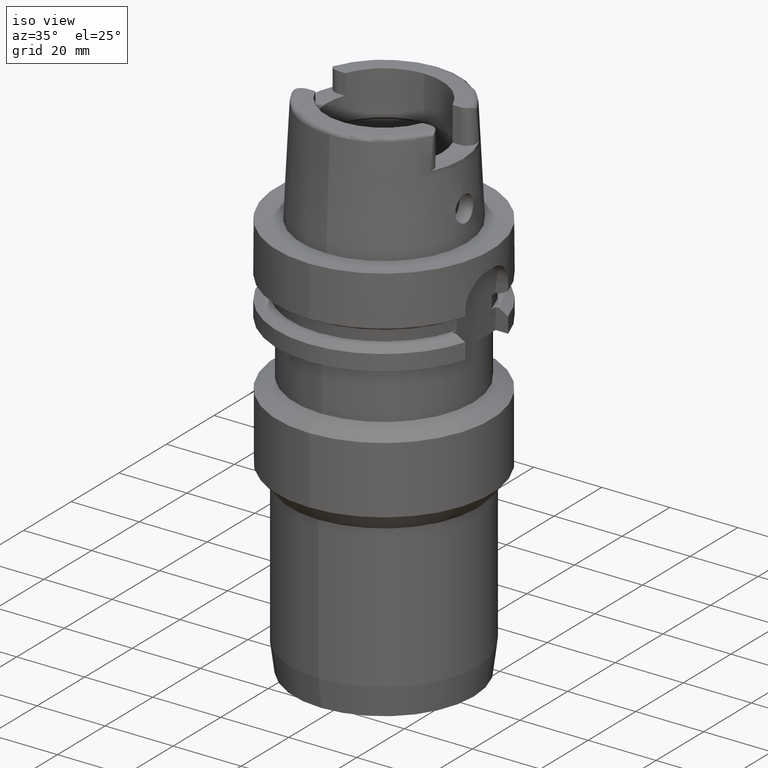
[diagram: clean part render]
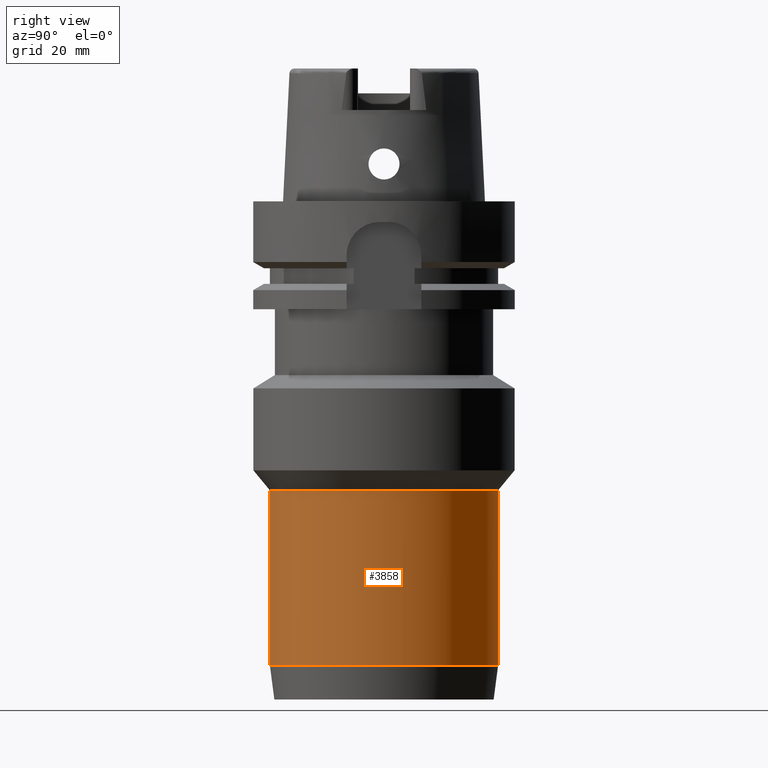
[diagram: tour spotlight — one face highlighted and labeled with its STEP entity id]
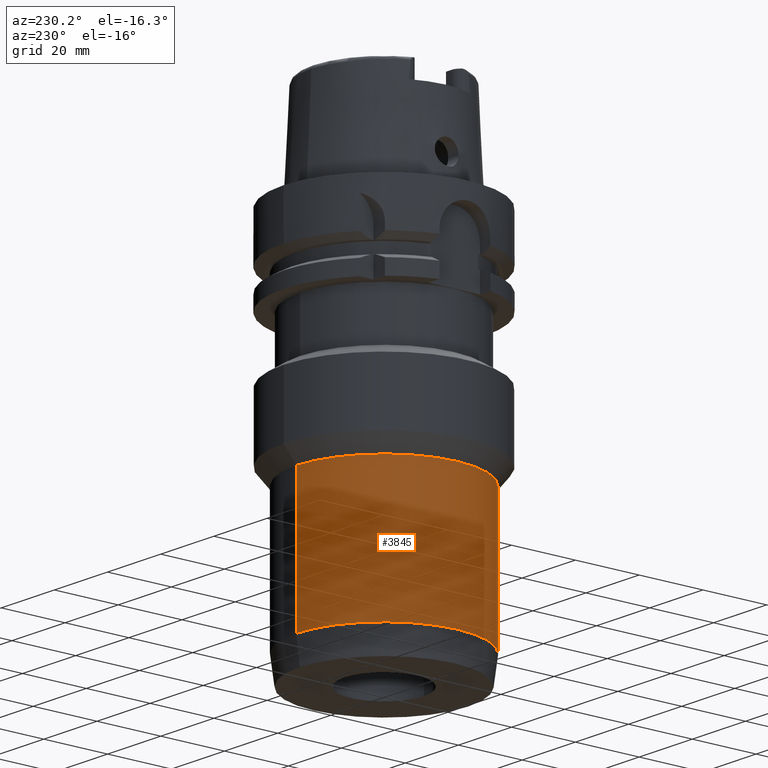
[diagram: tour spotlight — one face highlighted and labeled with its STEP entity id]
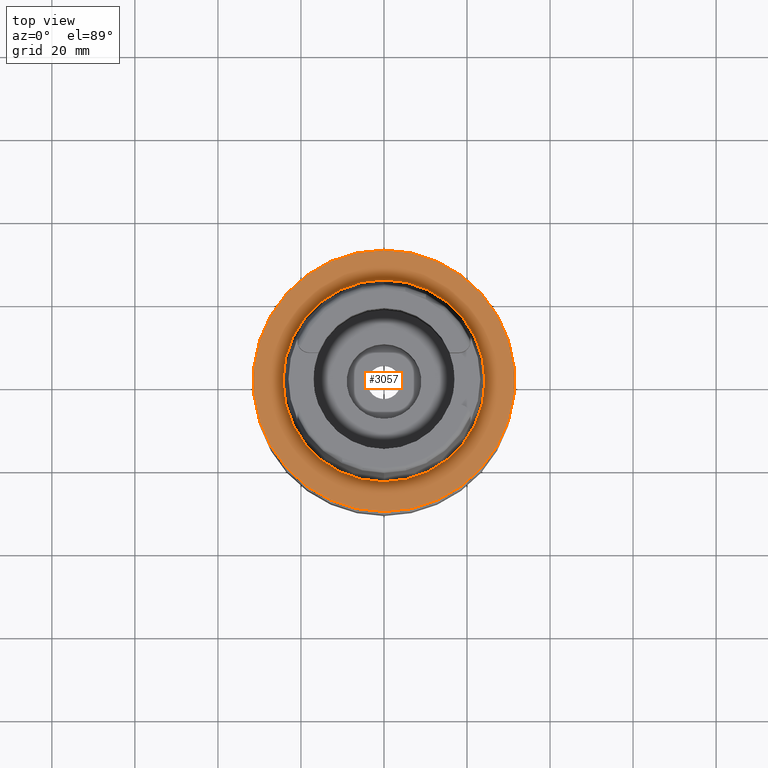
[diagram: tour spotlight — one face highlighted and labeled with its STEP entity id]
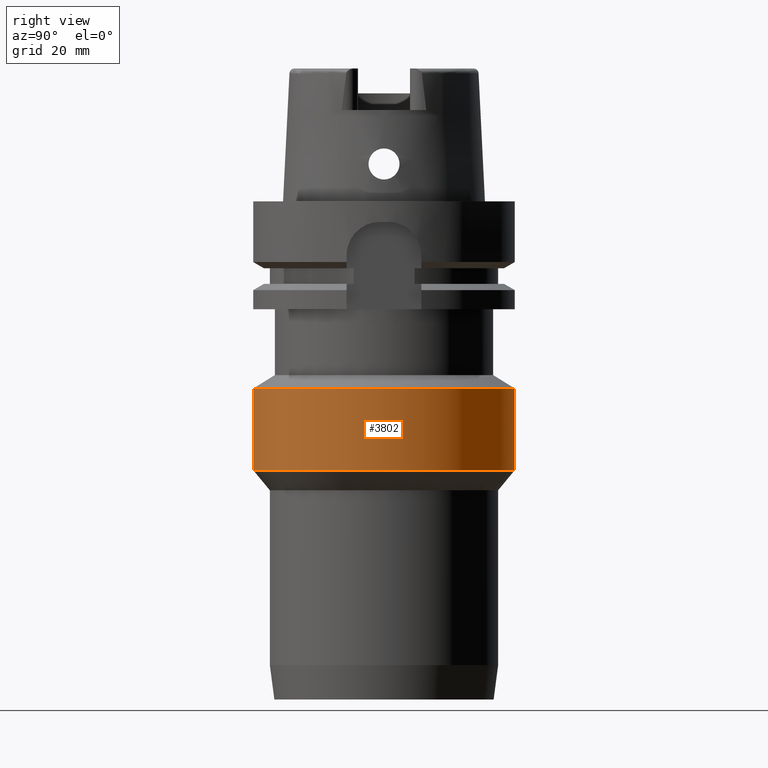
[diagram: tour spotlight — one face highlighted and labeled with its STEP entity id]
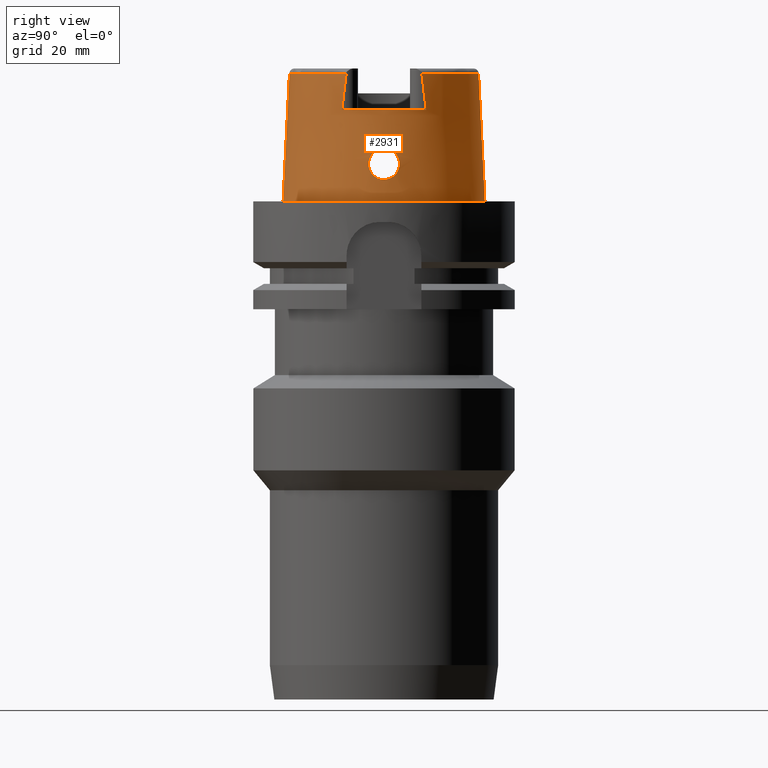
[diagram: tour spotlight — one face highlighted and labeled with its STEP entity id]
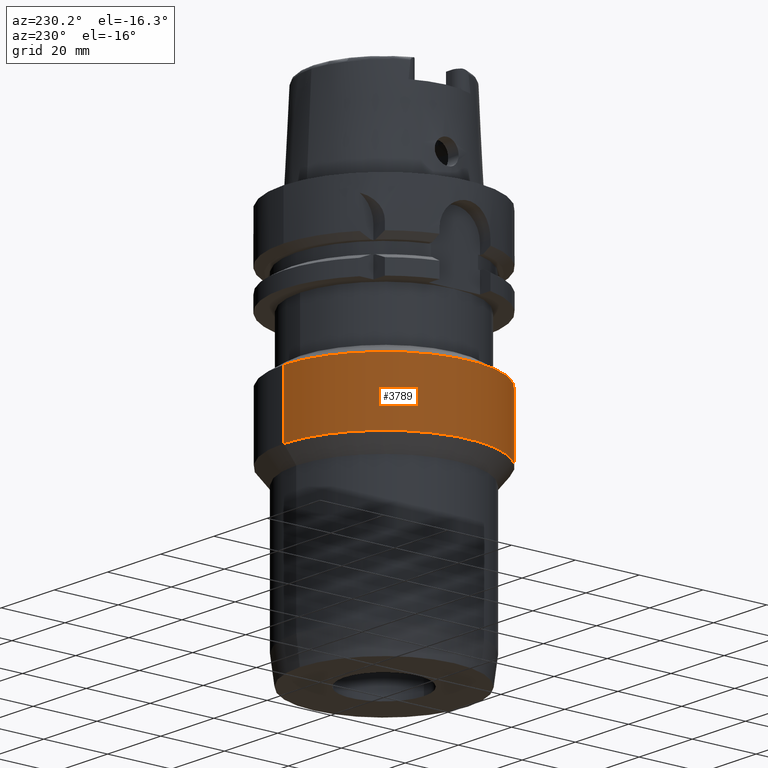
[diagram: tour spotlight — one face highlighted and labeled with its STEP entity id]
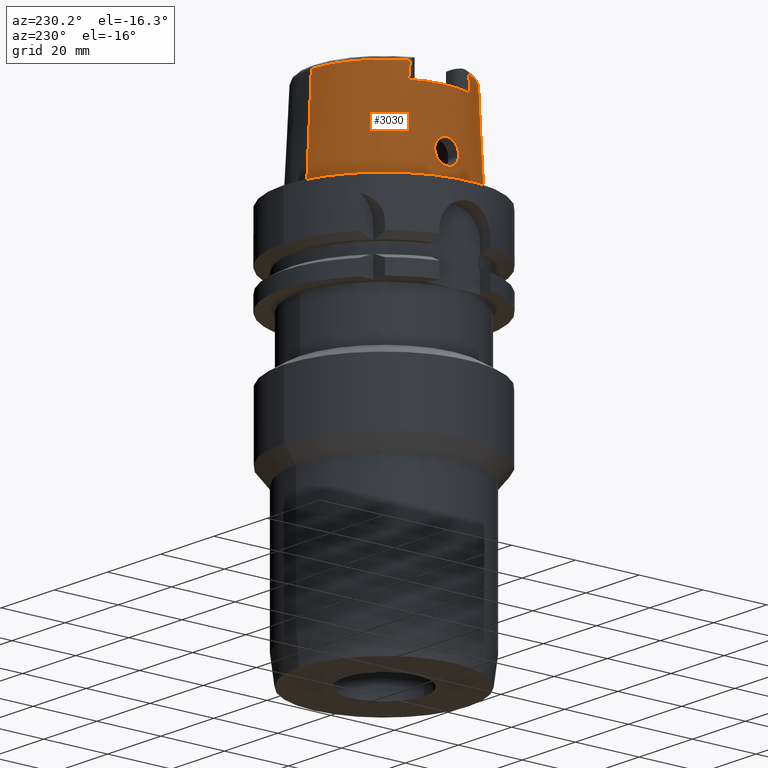
[diagram: tour spotlight — one face highlighted and labeled with its STEP entity id]
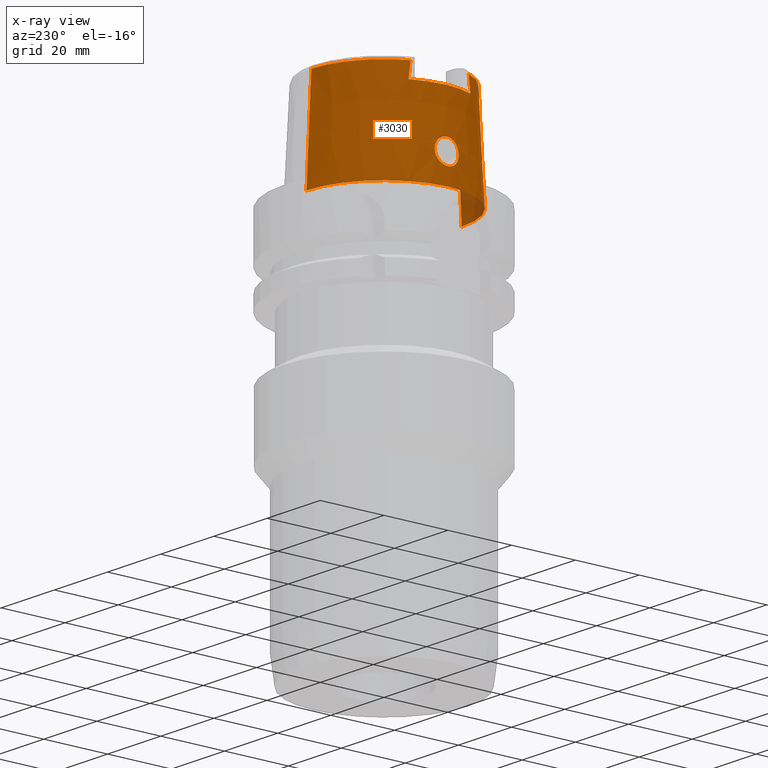
[diagram: x-ray of the same camera — body ghosted, this tour face saturated]
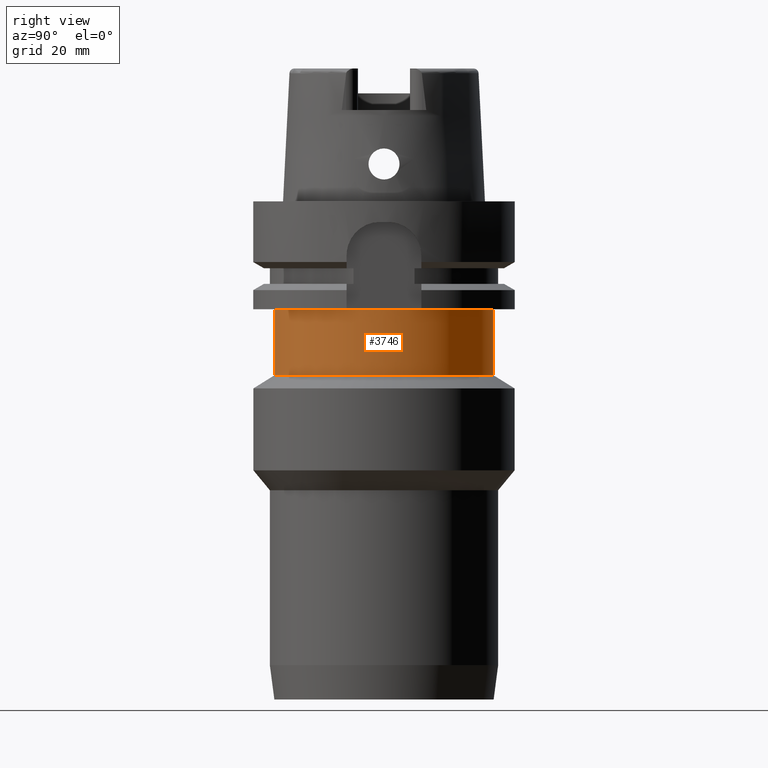
[diagram: tour spotlight — one face highlighted and labeled with its STEP entity id]
A machine part: a face-by-face anatomy tour. The part has 99 B-rep faces; the first image is the clean iso view, then the 8 largest visible faces are spotlighted one at a time (largest first), each with its STEP entity span.

Face 1 — right view, entity #3858. In plain terms, the highlighted cylindrical surface (partial cylindrical patch) has radius 27.5 mm, axis along (0, 0, -1).
Definition (entity closure, byte-faithful):
#1709=CARTESIAN_POINT('',(0.E0,0.E0,-6.958746436593E1));
#1710=DIRECTION('',(0.E0,0.E0,-1.E0));
#1711=DIRECTION('',(0.E0,1.E0,0.E0));
#1712=AXIS2_PLACEMENT_3D('',#1709,#1710,#1711);
#1748=DIRECTION('',(0.E0,7.135492575059E-14,-1.E0));
#1749=VECTOR('',#1748,4.212177002007E1);
#1750=CARTESIAN_POINT('',(0.E0,-2.75E1,-6.958746436593E1));
#1751=LINE('',#1750,#1749);
#1755=DIRECTION('',(0.E0,-7.143926963445E-14,-1.E0));
#1756=VECTOR('',#1755,4.212177002007E1);
#1757=CARTESIAN_POINT('',(0.E0,2.75E1,-6.958746436593E1));
#1758=LINE('',#1757,#1756);
#1769=CARTESIAN_POINT('',(0.E0,0.E0,-1.117092343860E2));
#1770=DIRECTION('',(0.E0,0.E0,1.E0));
#1771=DIRECTION('',(0.E0,-1.E0,0.E0));
#1772=AXIS2_PLACEMENT_3D('',#1769,#1770,#1771);
#2495=CARTESIAN_POINT('',(0.E0,2.75E1,-6.958746436593E1));
#2496=VERTEX_POINT('',#2495);
#2497=CARTESIAN_POINT('',(0.E0,-2.75E1,-6.958746436593E1));
#2498=VERTEX_POINT('',#2497);
#2499=CARTESIAN_POINT('',(0.E0,2.75E1,-1.117092343860E2));
#2500=VERTEX_POINT('',#2499);
#2501=CARTESIAN_POINT('',(0.E0,-2.75E1,-1.117092343860E2));
#2502=VERTEX_POINT('',#2501);
#3846=CARTESIAN_POINT('',(0.E0,1.709606931610E-14,3.96E1));
#3847=DIRECTION('',(0.E0,0.E0,-1.E0));
#3848=DIRECTION('',(0.E0,-1.E0,0.E0));
#3849=AXIS2_PLACEMENT_3D('',#3846,#3847,#3848);
#3850=CYLINDRICAL_SURFACE('',#3849,2.75E1);
#3851=ORIENTED_EDGE('',*,*,#3836,.T.);
#3853=ORIENTED_EDGE('',*,*,#3852,.F.);
#3854=ORIENTED_EDGE('',*,*,#3839,.F.);
#3855=ORIENTED_EDGE('',*,*,#3810,.F.);
#3856=EDGE_LOOP('',(#3851,#3853,#3854,#3855));
#3857=FACE_OUTER_BOUND('',#3856,.F.);
#1713=CIRCLE('',#1712,2.75E1);
#1773=CIRCLE('',#1772,2.75E1);
#3810=EDGE_CURVE('',#2496,#2498,#1713,.T.);
#3836=EDGE_CURVE('',#2496,#2500,#1758,.T.);
#3839=EDGE_CURVE('',#2498,#2502,#1751,.T.);
#3852=EDGE_CURVE('',#2502,#2500,#1773,.T.);
#3858=ADVANCED_FACE('',(#3857),#3850,.T.);

Face 2 — auxiliary view, entity #3845. In plain terms, the highlighted cylindrical surface (partial cylindrical patch) has radius 27.5 mm, axis along (0, 0, -1).
Definition (entity closure, byte-faithful):
#1740=CARTESIAN_POINT('',(0.E0,0.E0,-6.958746436593E1));
#1741=DIRECTION('',(0.E0,0.E0,-1.E0));
#1742=DIRECTION('',(0.E0,-1.E0,0.E0));
#1743=AXIS2_PLACEMENT_3D('',#1740,#1741,#1742);
#1748=DIRECTION('',(0.E0,7.135492575059E-14,-1.E0));
#1749=VECTOR('',#1748,4.212177002007E1);
#1750=CARTESIAN_POINT('',(0.E0,-2.75E1,-6.958746436593E1));
#1751=LINE('',#1750,#1749);
#1755=DIRECTION('',(0.E0,-7.143926963445E-14,-1.E0));
#1756=VECTOR('',#1755,4.212177002007E1);
#1757=CARTESIAN_POINT('',(0.E0,2.75E1,-6.958746436593E1));
#1758=LINE('',#1757,#1756);
#1777=CARTESIAN_POINT('',(0.E0,0.E0,-1.117092343860E2));
#1778=DIRECTION('',(0.E0,0.E0,1.E0));
#1779=DIRECTION('',(0.E0,1.E0,0.E0));
#1780=AXIS2_PLACEMENT_3D('',#1777,#1778,#1779);
#2495=CARTESIAN_POINT('',(0.E0,2.75E1,-6.958746436593E1));
#2496=VERTEX_POINT('',#2495);
#2497=CARTESIAN_POINT('',(0.E0,-2.75E1,-6.958746436593E1));
#2498=VERTEX_POINT('',#2497);
#2499=CARTESIAN_POINT('',(0.E0,2.75E1,-1.117092343860E2));
#2500=VERTEX_POINT('',#2499);
#2501=CARTESIAN_POINT('',(0.E0,-2.75E1,-1.117092343860E2));
#2502=VERTEX_POINT('',#2501);
#3831=CARTESIAN_POINT('',(0.E0,1.709606931610E-14,3.96E1));
#3832=DIRECTION('',(0.E0,0.E0,-1.E0));
#3833=DIRECTION('',(0.E0,-1.E0,0.E0));
#3834=AXIS2_PLACEMENT_3D('',#3831,#3832,#3833);
#3835=CYLINDRICAL_SURFACE('',#3834,2.75E1);
#3837=ORIENTED_EDGE('',*,*,#3836,.F.);
#3838=ORIENTED_EDGE('',*,*,#3826,.F.);
#3840=ORIENTED_EDGE('',*,*,#3839,.T.);
#3842=ORIENTED_EDGE('',*,*,#3841,.F.);
#3843=EDGE_LOOP('',(#3837,#3838,#3840,#3842));
#3844=FACE_OUTER_BOUND('',#3843,.F.);
#1744=CIRCLE('',#1743,2.75E1);
#1781=CIRCLE('',#1780,2.75E1);
#3826=EDGE_CURVE('',#2498,#2496,#1744,.T.);
#3836=EDGE_CURVE('',#2496,#2500,#1758,.T.);
#3839=EDGE_CURVE('',#2498,#2502,#1751,.T.);
#3841=EDGE_CURVE('',#2500,#2502,#1781,.T.);
#3845=ADVANCED_FACE('',(#3844),#3835,.T.);

Face 3 — top view, entity #3057. In plain terms, the highlighted planar face has unit normal (0, 0, -1).
Definition (entity closure, byte-faithful):
#633=CARTESIAN_POINT('',(0.E0,1.709606931610E-14,8.526512829121E-14));
#634=DIRECTION('',(0.E0,0.E0,-1.E0));
#635=DIRECTION('',(0.E0,-1.E0,0.E0));
#636=AXIS2_PLACEMENT_3D('',#633,#634,#635);
#641=CARTESIAN_POINT('',(0.E0,1.709606931610E-14,8.526512829121E-14));
#642=DIRECTION('',(0.E0,0.E0,-1.E0));
#643=DIRECTION('',(0.E0,1.E0,0.E0));
#644=AXIS2_PLACEMENT_3D('',#641,#642,#643);
#649=CARTESIAN_POINT('',(0.E0,1.413609354012E-14,1.136868377216E-13));
#650=DIRECTION('',(0.E0,0.E0,1.E0));
#651=DIRECTION('',(0.E0,-1.E0,0.E0));
#652=AXIS2_PLACEMENT_3D('',#649,#650,#651);
#657=CARTESIAN_POINT('',(0.E0,1.413609354012E-14,1.136868377216E-13));
#658=DIRECTION('',(0.E0,0.E0,1.E0));
#659=DIRECTION('',(0.E0,1.E0,0.E0));
#660=AXIS2_PLACEMENT_3D('',#657,#658,#659);
#2409=CARTESIAN_POINT('',(0.E0,-2.431503482329E1,1.882938249764E-13));
#2410=VERTEX_POINT('',#2409);
#2411=CARTESIAN_POINT('',(0.E0,2.431503482329E1,1.136868377216E-13));
#2412=VERTEX_POINT('',#2411);
#2419=CARTESIAN_POINT('',(0.E0,-3.15E1,8.526512829121E-14));
#2420=CARTESIAN_POINT('',(0.E0,3.15E1,8.526512829121E-14));
#2421=VERTEX_POINT('',#2419);
#2422=VERTEX_POINT('',#2420);
#3042=CARTESIAN_POINT('',(0.E0,1.224646799147E-14,0.E0));
#3043=DIRECTION('',(0.E0,0.E0,-1.E0));
#3044=DIRECTION('',(0.E0,-1.E0,0.E0));
#3045=AXIS2_PLACEMENT_3D('',#3042,#3043,#3044);
#3046=PLANE('',#3045);
#3048=ORIENTED_EDGE('',*,*,#3047,.T.);
#3050=ORIENTED_EDGE('',*,*,#3049,.T.);
#3051=EDGE_LOOP('',(#3048,#3050));
#3052=FACE_OUTER_BOUND('',#3051,.F.);
#3053=ORIENTED_EDGE('',*,*,#2915,.T.);
#3054=ORIENTED_EDGE('',*,*,#3016,.T.);
#3055=EDGE_LOOP('',(#3053,#3054));
#3056=FACE_BOUND('',#3055,.F.);
#637=CIRCLE('',#636,3.15E1);
#645=CIRCLE('',#644,3.15E1);
#653=CIRCLE('',#652,2.431503482329E1);
#661=CIRCLE('',#660,2.431503482329E1);
#2915=EDGE_CURVE('',#2410,#2412,#653,.T.);
#3016=EDGE_CURVE('',#2412,#2410,#661,.T.);
#3047=EDGE_CURVE('',#2421,#2422,#637,.T.);
#3049=EDGE_CURVE('',#2422,#2421,#645,.T.);
#3057=ADVANCED_FACE('',(#3052,#3056),#3046,.F.);

Face 4 — right view, entity #3802. In plain terms, the highlighted cylindrical surface (partial cylindrical patch) has radius 31.45 mm, axis along (0, 0, -1).
Definition (entity closure, byte-faithful):
#1649=CARTESIAN_POINT('',(0.E0,0.E0,-4.505134572014E1));
#1650=DIRECTION('',(0.E0,0.E0,-1.E0));
#1651=DIRECTION('',(0.E0,1.E0,0.E0));
#1652=AXIS2_PLACEMENT_3D('',#1649,#1650,#1651);
#1688=DIRECTION('',(0.E0,-3.542346600513E-14,-1.E0));
#1689=VECTOR('',#1688,1.975765427986E1);
#1690=CARTESIAN_POINT('',(0.E0,-3.145E1,-4.505134572014E1));
#1691=LINE('',#1690,#1689);
#1695=DIRECTION('',(0.E0,3.560328055338E-14,-1.E0));
#1696=VECTOR('',#1695,1.975765427986E1);
#1697=CARTESIAN_POINT('',(0.E0,3.145E1,-4.505134572014E1));
#1698=LINE('',#1697,#1696);
#1717=CARTESIAN_POINT('',(0.E0,0.E0,-6.4809E1));
#1718=DIRECTION('',(0.E0,0.E0,1.E0));
#1719=DIRECTION('',(0.E0,-1.E0,0.E0));
#1720=AXIS2_PLACEMENT_3D('',#1717,#1718,#1719);
#2487=CARTESIAN_POINT('',(0.E0,3.145E1,-4.505134572014E1));
#2488=VERTEX_POINT('',#2487);
#2489=CARTESIAN_POINT('',(0.E0,-3.145E1,-4.505134572014E1));
#2490=VERTEX_POINT('',#2489);
#2491=CARTESIAN_POINT('',(0.E0,3.145E1,-6.4809E1));
#2492=VERTEX_POINT('',#2491);
#2493=CARTESIAN_POINT('',(0.E0,-3.145E1,-6.4809E1));
#2494=VERTEX_POINT('',#2493);
#3790=CARTESIAN_POINT('',(0.E0,1.709606931610E-14,3.96E1));
#3791=DIRECTION('',(0.E0,0.E0,-1.E0));
#3792=DIRECTION('',(0.E0,-1.E0,0.E0));
#3793=AXIS2_PLACEMENT_3D('',#3790,#3791,#3792);
#3794=CYLINDRICAL_SURFACE('',#3793,3.145E1);
#3795=ORIENTED_EDGE('',*,*,#3780,.T.);
#3797=ORIENTED_EDGE('',*,*,#3796,.F.);
#3798=ORIENTED_EDGE('',*,*,#3783,.F.);
#3799=ORIENTED_EDGE('',*,*,#3754,.F.);
#3800=EDGE_LOOP('',(#3795,#3797,#3798,#3799));
#3801=FACE_OUTER_BOUND('',#3800,.F.);
#1653=CIRCLE('',#1652,3.145E1);
#1721=CIRCLE('',#1720,3.145E1);
#3754=EDGE_CURVE('',#2488,#2490,#1653,.T.);
#3780=EDGE_CURVE('',#2488,#2492,#1698,.T.);
#3783=EDGE_CURVE('',#2490,#2494,#1691,.T.);
#3796=EDGE_CURVE('',#2494,#2492,#1721,.T.);
#3802=ADVANCED_FACE('',(#3801),#3794,.T.);

Face 5 — right view, entity #2931. In plain terms, the highlighted conical surface has half-angle 2.862 deg.
Definition (entity closure, byte-faithful):
#69=CARTESIAN_POINT('',(0.E0,1.413609354012E-14,2.2E1));
#70=DIRECTION('',(0.E0,0.E0,-1.E0));
#71=DIRECTION('',(8.989877876694E-1,4.379736951247E-1,0.E0));
#72=AXIS2_PLACEMENT_3D('',#69,#70,#71);
#342=CARTESIAN_POINT('',(2.086974110889E1,-9.111383544988E0,3.085992740154E1));
#347=CARTESIAN_POINT('',(0.E0,1.601838013285E-14,3.085992712280E1));
#348=DIRECTION('',(0.E0,0.E0,-1.E0));
#349=DIRECTION('',(9.164655183266E-1,-4.001136759952E-1,0.E0));
#350=AXIS2_PLACEMENT_3D('',#347,#348,#349);
#385=CARTESIAN_POINT('',(2.087000233117E1,9.149994763925E0,3.054552228659E1));
#386=CARTESIAN_POINT('',(2.087000233117E1,9.145648092563E0,3.058042765273E1));
#387=CARTESIAN_POINT('',(2.086997923046E1,9.137001476114E0,3.065040344270E1));
#388=CARTESIAN_POINT('',(2.086989361721E1,9.124125366953E0,3.075510703058E1));
#389=CARTESIAN_POINT('',(2.086979784206E1,9.115619992010E0,3.082498881682E1));
#390=CARTESIAN_POINT('',(2.086974104061E1,9.111384044671E0,3.085992600054E1));
#395=DIRECTION('',(0.E0,4.993926899645E-2,-9.987522562738E-1));
#396=VECTOR('',#395,3.089848050800E1);
#397=CARTESIAN_POINT('',(0.E0,2.277198729362E1,3.085992712280E1));
#398=LINE('',#397,#396);
#402=CARTESIAN_POINT('',(2.086974110889E1,-9.111383544988E0,3.085992740154E1));
#403=CARTESIAN_POINT('',(2.086979791523E1,-9.115619747689E0,3.082498808655E1));
#404=CARTESIAN_POINT('',(2.086989218472E1,-9.124129272719E0,3.075517067496E1));
#405=CARTESIAN_POINT('',(2.086998416095E1,-9.136991125851E0,3.065018213913E1));
#406=CARTESIAN_POINT('',(2.086999179057E1,-9.145671607435E0,3.058090183600E1));
#407=CARTESIAN_POINT('',(2.086999179057E1,-9.150018439713E0,3.054599490601E1));
#412=CARTESIAN_POINT('',(2.367751368058E1,0.E0,1.275E1));
#413=CARTESIAN_POINT('',(2.367751368058E1,-3.273396948409E-1,1.275E1));
#414=CARTESIAN_POINT('',(2.366793732003E1,-9.825608089396E-1,1.266377449692E1));
#415=CARTESIAN_POINT('',(2.362981172975E1,-1.900014638647E0,1.228336194749E1));
#416=CARTESIAN_POINT('',(2.358191446751E1,-2.688106377306E0,1.167636858064E1));
#417=CARTESIAN_POINT('',(2.354357318696E1,-3.288823175355E0,1.088964362128E1));
#418=CARTESIAN_POINT('',(2.353292972525E1,-3.664996854964E0,9.975431062438E0));
#419=CARTESIAN_POINT('',(2.356155067532E1,-3.792201626681E0,9.003318278152E0));
#420=CARTESIAN_POINT('',(2.363132659772E1,-3.666190257182E0,8.028241348544E0));
#421=CARTESIAN_POINT('',(2.373410829270E1,-3.290344558345E0,7.112700043634E0));
#422=CARTESIAN_POINT('',(2.385148632329E1,-2.687574758994E0,6.322334277969E0));
#423=CARTESIAN_POINT('',(2.395990470191E1,-1.893937188710E0,5.712776812559E0));
#424=CARTESIAN_POINT('',(2.403486386618E1,-9.758445245674E-1,5.334737063711E0));
#425=CARTESIAN_POINT('',(2.405252611747E1,-3.244509894411E-1,5.25E0));
#426=CARTESIAN_POINT('',(2.405252611747E1,0.E0,5.25E0));
#431=CARTESIAN_POINT('',(2.405252611747E1,0.E0,5.25E0));
#432=CARTESIAN_POINT('',(2.405252611747E1,3.241908477320E-1,5.25E0));
#433=CARTESIAN_POINT('',(2.403484419346E1,9.733339745700E-1,5.334870901626E0));
#434=CARTESIAN_POINT('',(2.396118748287E1,1.880398099858E0,5.706264927079E0));
#435=CARTESIAN_POINT('',(2.385421069084E1,2.670827345003E0,6.306100415819E0));
#436=CARTESIAN_POINT('',(2.373660352721E1,3.279837834048E0,7.093349186886E0));
#437=CARTESIAN_POINT('',(2.363225136560E1,3.664169428413E0,8.016594679270E0));
#438=CARTESIAN_POINT('',(2.356145077003E1,3.793008660035E0,9.002654627800E0));
#439=CARTESIAN_POINT('',(2.353285683660E1,3.663794510186E0,9.980784107382E0));
#440=CARTESIAN_POINT('',(2.354373578410E1,3.286378647181E0,1.089302919554E1));
#441=CARTESIAN_POINT('',(2.358182944778E1,2.689291646619E0,1.167450170260E1));
#442=CARTESIAN_POINT('',(2.362959251204E1,1.904101727657E0,1.228103242879E1));
#443=CARTESIAN_POINT('',(2.366788498815E1,9.851071126139E-1,1.266332396514E1));
#444=CARTESIAN_POINT('',(2.367751368058E1,3.283681169677E-1,1.275E1));
#445=CARTESIAN_POINT('',(2.367751368058E1,0.E0,1.275E1));
#450=CARTESIAN_POINT('',(2.087000233117E1,9.149994763925E0,3.054552228659E1));
#451=CARTESIAN_POINT('',(2.087000233117E1,9.268139688079E0,2.959677519009E1));
#452=CARTESIAN_POINT('',(2.087000131872E1,9.500481966085E0,2.769841628382E1));
#453=CARTESIAN_POINT('',(2.086999188773E1,9.839930571559E0,2.484991349389E1));
#454=CARTESIAN_POINT('',(2.087001804949E1,1.005901105765E1,2.295005045281E1));
#455=CARTESIAN_POINT('',(2.087001804949E1,1.016747560218E1,2.2E1));
#500=CARTESIAN_POINT('',(0.E0,1.601838013285E-14,3.085992712280E1));
#501=DIRECTION('',(0.E0,0.E0,-1.E0));
#502=DIRECTION('',(0.E0,1.E0,0.E0));
#503=AXIS2_PLACEMENT_3D('',#500,#501,#502);
#508=CARTESIAN_POINT('',(0.E0,1.601838013285E-14,3.085992712280E1));
#509=DIRECTION('',(0.E0,0.E0,-1.E0));
#510=DIRECTION('',(9.289215035764E-4,9.999995685523E-1,0.E0));
#511=AXIS2_PLACEMENT_3D('',#508,#509,#510);
#568=DIRECTION('',(0.E0,-4.993926899646E-2,-9.987522562738E-1));
#569=VECTOR('',#568,3.089848050800E1);
#570=CARTESIAN_POINT('',(0.E0,-2.277198729362E1,3.085992712280E1));
#571=LINE('',#570,#569);
#649=CARTESIAN_POINT('',(0.E0,1.413609354012E-14,1.136868377216E-13));
#650=DIRECTION('',(0.E0,0.E0,1.E0));
#651=DIRECTION('',(0.E0,-1.E0,0.E0));
#652=AXIS2_PLACEMENT_3D('',#649,#650,#651);
#2308=CARTESIAN_POINT('',(2.086999606047E1,-1.016757672263E1,2.2E1));
#2309=CARTESIAN_POINT('',(2.086999606047E1,-1.005911256636E1,2.295005970425E1));
#2310=CARTESIAN_POINT('',(2.087000074386E1,-9.839671170730E0,2.484985276533E1));
#2311=CARTESIAN_POINT('',(2.087000330580E1,-9.500221779046E0,2.769849459294E1));
#2312=CARTESIAN_POINT('',(2.086999179057E1,-9.268249004905E0,2.959655269214E1));
#2313=CARTESIAN_POINT('',(2.086999179057E1,-9.150018439713E0,3.054599490601E1));
#2345=CARTESIAN_POINT('',(2.087001804949E1,1.016747560218E1,2.2E1));
#2346=VERTEX_POINT('',#2345);
#2347=CARTESIAN_POINT('',(2.087E1,-1.016755860605E1,2.2E1));
#2348=VERTEX_POINT('',#2347);
#2396=CARTESIAN_POINT('',(0.E0,2.277198729362E1,3.085992712280E1));
#2397=VERTEX_POINT('',#2396);
#2398=CARTESIAN_POINT('',(2.115338867621E-2,2.277197746870E1,3.085992712280E1));
#2399=CARTESIAN_POINT('',(2.086974092012E1,9.111384045666E0,3.085992712280E1));
#2400=VERTEX_POINT('',#2398);
#2401=VERTEX_POINT('',#2399);
#2402=VERTEX_POINT('',#342);
#2403=CARTESIAN_POINT('',(0.E0,-2.277198729362E1,3.085992712280E1));
#2404=VERTEX_POINT('',#2403);
#2409=CARTESIAN_POINT('',(0.E0,-2.431503482329E1,1.882938249764E-13));
#2410=VERTEX_POINT('',#2409);
#2411=CARTESIAN_POINT('',(0.E0,2.431503482329E1,1.136868377216E-13));
#2412=VERTEX_POINT('',#2411);
#2415=VERTEX_POINT('',#450);
#2416=VERTEX_POINT('',#407);
#2417=VERTEX_POINT('',#412);
#2418=VERTEX_POINT('',#426);
#2899=CARTESIAN_POINT('',(0.E0,1.413609354012E-14,1.542996356140E1));
#2900=DIRECTION('',(0.E0,0.E0,-1.E0));
#2901=DIRECTION('',(0.E0,-1.E0,0.E0));
#2902=AXIS2_PLACEMENT_3D('',#2899,#2900,#2901);
#2903=CONICAL_SURFACE('',#2902,2.354351105845E1,2.8625E0);
#2904=ORIENTED_EDGE('',*,*,#2707,.F.);
#2906=ORIENTED_EDGE('',*,*,#2905,.F.);
#2908=ORIENTED_EDGE('',*,*,#2907,.T.);
#2910=ORIENTED_EDGE('',*,*,#2909,.F.);
#2912=ORIENTED_EDGE('',*,*,#2911,.F.);
#2914=ORIENTED_EDGE('',*,*,#2913,.T.);
#2916=ORIENTED_EDGE('',*,*,#2915,.F.);
#2918=ORIENTED_EDGE('',*,*,#2917,.F.);
#2919=ORIENTED_EDGE('',*,*,#2873,.F.);
#2920=ORIENTED_EDGE('',*,*,#2887,.T.);
#2922=ORIENTED_EDGE('',*,*,#2921,.F.);
#2923=EDGE_LOOP('',(#2904,#2906,#2908,#2910,#2912,#2914,#2916,#2918,#2919,#2920,
#2922));
#2924=FACE_OUTER_BOUND('',#2923,.F.);
#2926=ORIENTED_EDGE('',*,*,#2925,.T.);
#2928=ORIENTED_EDGE('',*,*,#2927,.T.);
#2929=EDGE_LOOP('',(#2926,#2928));
#2930=FACE_BOUND('',#2929,.F.);
#73=CIRCLE('',#72,2.321499834175E1);
#351=CIRCLE('',#350,2.277198729362E1);
#391=B_SPLINE_CURVE_WITH_KNOTS('',3,(#385,#386,#387,#388,#389,#390),
.UNSPECIFIED.,.F.,.F.,(4,1,1,4),(0.E0,3.333333333333E-1,6.666666666667E-1,1.E0),
.UNSPECIFIED.);
#408=B_SPLINE_CURVE_WITH_KNOTS('',3,(#402,#403,#404,#405,#406,#407),
.UNSPECIFIED.,.F.,.F.,(4,1,1,4),(0.E0,3.333333333333E-1,6.666666666667E-1,1.E0),
.UNSPECIFIED.);
#427=B_SPLINE_CURVE_WITH_KNOTS('',3,(#412,#413,#414,#415,#416,#417,#418,#419,
#420,#421,#422,#423,#424,#425,#426),.UNSPECIFIED.,.F.,.F.,(4,1,1,1,1,1,1,1,1,1,
1,1,4),(0.E0,8.333333333333E-2,1.666666666667E-1,2.5E-1,3.333333333333E-1,
4.166666666667E-1,5.E-1,5.833333333333E-1,6.666666666667E-1,7.5E-1,
8.333333333333E-1,9.166666666667E-1,1.E0),.UNSPECIFIED.);
#446=B_SPLINE_CURVE_WITH_KNOTS('',3,(#431,#432,#433,#434,#435,#436,#437,#438,
#439,#440,#441,#442,#443,#444,#445),.UNSPECIFIED.,.F.,.F.,(4,1,1,1,1,1,1,1,1,1,
1,1,4),(0.E0,8.333333333333E-2,1.666666666667E-1,2.5E-1,3.333333333333E-1,
4.166666666667E-1,5.E-1,5.833333333333E-1,6.666666666667E-1,7.5E-1,
8.333333333333E-1,9.166666666667E-1,1.E0),.UNSPECIFIED.);
#456=B_SPLINE_CURVE_WITH_KNOTS('',3,(#450,#451,#452,#453,#454,#455),
.UNSPECIFIED.,.F.,.F.,(4,1,1,4),(0.E0,3.333333333333E-1,6.666666666667E-1,1.E0),
.UNSPECIFIED.);
#504=CIRCLE('',#503,2.277198729362E1);
#512=CIRCLE('',#511,2.277198729362E1);
#653=CIRCLE('',#652,2.431503482329E1);
#2314=B_SPLINE_CURVE_WITH_KNOTS('',3,(#2308,#2309,#2310,#2311,#2312,#2313),
.UNSPECIFIED.,.F.,.F.,(4,1,1,4),(0.E0,3.333333333333E-1,6.666666666667E-1,1.E0),
.UNSPECIFIED.);
#2707=EDGE_CURVE('',#2346,#2348,#73,.T.);
#2873=EDGE_CURVE('',#2402,#2404,#351,.T.);
#2887=EDGE_CURVE('',#2402,#2416,#408,.T.);
#2905=EDGE_CURVE('',#2415,#2346,#456,.T.);
#2907=EDGE_CURVE('',#2415,#2401,#391,.T.);
#2909=EDGE_CURVE('',#2400,#2401,#512,.T.);
#2911=EDGE_CURVE('',#2397,#2400,#504,.T.);
#2913=EDGE_CURVE('',#2397,#2412,#398,.T.);
#2915=EDGE_CURVE('',#2410,#2412,#653,.T.);
#2917=EDGE_CURVE('',#2404,#2410,#571,.T.);
#2921=EDGE_CURVE('',#2348,#2416,#2314,.T.);
#2925=EDGE_CURVE('',#2417,#2418,#427,.T.);
#2927=EDGE_CURVE('',#2418,#2417,#446,.T.);
#2931=ADVANCED_FACE('',(#2924,#2930),#2903,.T.);

Face 6 — auxiliary view, entity #3789. In plain terms, the highlighted cylindrical surface (partial cylindrical patch) has radius 31.45 mm, axis along (0, 0, -1).
Definition (entity closure, byte-faithful):
#1680=CARTESIAN_POINT('',(0.E0,0.E0,-4.505134572014E1));
#1681=DIRECTION('',(0.E0,0.E0,-1.E0));
#1682=DIRECTION('',(0.E0,-1.E0,0.E0));
#1683=AXIS2_PLACEMENT_3D('',#1680,#1681,#1682);
#1688=DIRECTION('',(0.E0,-3.542346600513E-14,-1.E0));
#1689=VECTOR('',#1688,1.975765427986E1);
#1690=CARTESIAN_POINT('',(0.E0,-3.145E1,-4.505134572014E1));
#1691=LINE('',#1690,#1689);
#1695=DIRECTION('',(0.E0,3.560328055338E-14,-1.E0));
#1696=VECTOR('',#1695,1.975765427986E1);
#1697=CARTESIAN_POINT('',(0.E0,3.145E1,-4.505134572014E1));
#1698=LINE('',#1697,#1696);
#1725=CARTESIAN_POINT('',(0.E0,0.E0,-6.4809E1));
#1726=DIRECTION('',(0.E0,0.E0,1.E0));
#1727=DIRECTION('',(0.E0,1.E0,0.E0));
#1728=AXIS2_PLACEMENT_3D('',#1725,#1726,#1727);
#2487=CARTESIAN_POINT('',(0.E0,3.145E1,-4.505134572014E1));
#2488=VERTEX_POINT('',#2487);
#2489=CARTESIAN_POINT('',(0.E0,-3.145E1,-4.505134572014E1));
#2490=VERTEX_POINT('',#2489);
#2491=CARTESIAN_POINT('',(0.E0,3.145E1,-6.4809E1));
#2492=VERTEX_POINT('',#2491);
#2493=CARTESIAN_POINT('',(0.E0,-3.145E1,-6.4809E1));
#2494=VERTEX_POINT('',#2493);
#3775=CARTESIAN_POINT('',(0.E0,1.709606931610E-14,3.96E1));
#3776=DIRECTION('',(0.E0,0.E0,-1.E0));
#3777=DIRECTION('',(0.E0,-1.E0,0.E0));
#3778=AXIS2_PLACEMENT_3D('',#3775,#3776,#3777);
#3779=CYLINDRICAL_SURFACE('',#3778,3.145E1);
#3781=ORIENTED_EDGE('',*,*,#3780,.F.);
#3782=ORIENTED_EDGE('',*,*,#3770,.F.);
#3784=ORIENTED_EDGE('',*,*,#3783,.T.);
#3786=ORIENTED_EDGE('',*,*,#3785,.F.);
#3787=EDGE_LOOP('',(#3781,#3782,#3784,#3786));
#3788=FACE_OUTER_BOUND('',#3787,.F.);
#1684=CIRCLE('',#1683,3.145E1);
#1729=CIRCLE('',#1728,3.145E1);
#3770=EDGE_CURVE('',#2490,#2488,#1684,.T.);
#3780=EDGE_CURVE('',#2488,#2492,#1698,.T.);
#3783=EDGE_CURVE('',#2490,#2494,#1691,.T.);
#3785=EDGE_CURVE('',#2492,#2494,#1729,.T.);
#3789=ADVANCED_FACE('',(#3788),#3779,.T.);

Face 7 — auxiliary view, entity #3030. An x-ray twin of the same camera follows (body ghosted, this face saturated) — the face is partly hidden behind the body. In plain terms, the highlighted conical surface has half-angle 2.862 deg.
Definition (entity closure, byte-faithful):
#212=CARTESIAN_POINT('',(0.E0,1.413609354012E-14,2.6E1));
#213=DIRECTION('',(0.E0,0.E0,-1.E0));
#214=DIRECTION('',(-9.068002397791E-1,-4.215605829967E-1,0.E0));
#215=AXIS2_PLACEMENT_3D('',#212,#213,#214);
#311=CARTESIAN_POINT('',(-2.086974104061E1,-9.111384044678E0,3.085992600049E1));
#355=CARTESIAN_POINT('',(0.E0,1.601838013285E-14,3.085992712280E1));
#356=DIRECTION('',(0.E0,0.E0,-1.E0));
#357=DIRECTION('',(0.E0,-1.E0,0.E0));
#358=AXIS2_PLACEMENT_3D('',#355,#356,#357);
#363=CARTESIAN_POINT('',(0.E0,1.601838013285E-14,3.085992712280E1));
#364=DIRECTION('',(0.E0,0.E0,-1.E0));
#365=DIRECTION('',(-9.289215035773E-4,-9.999995685523E-1,0.E0));
#366=AXIS2_PLACEMENT_3D('',#363,#364,#365);
#395=DIRECTION('',(0.E0,4.993926899645E-2,-9.987522562738E-1));
#396=VECTOR('',#395,3.089848050800E1);
#397=CARTESIAN_POINT('',(0.E0,2.277198729362E1,3.085992712280E1));
#398=LINE('',#397,#396);
#487=CARTESIAN_POINT('',(-2.086974110889E1,9.111383545002E0,3.085992740142E1));
#492=CARTESIAN_POINT('',(0.E0,1.601838013285E-14,3.085992712280E1));
#493=DIRECTION('',(0.E0,0.E0,-1.E0));
#494=DIRECTION('',(-9.164655183266E-1,4.001136759952E-1,0.E0));
#495=AXIS2_PLACEMENT_3D('',#492,#493,#494);
#548=CARTESIAN_POINT('',(-2.086999931535E1,9.702216590559E0,2.6E1));
#549=CARTESIAN_POINT('',(-2.086999931535E1,9.642289321297E0,2.650524296503E1));
#550=CARTESIAN_POINT('',(-2.087000013678E1,9.521576058223E0,2.751562006362E1));
#551=CARTESIAN_POINT('',(-2.087000054824E1,9.337460505505E0,2.903084639453E1));
#552=CARTESIAN_POINT('',(-2.086999862958E1,9.212886209212E0,3.004071208366E1));
#553=CARTESIAN_POINT('',(-2.086999862958E1,9.150003078069E0,3.054568808289E1));
#558=CARTESIAN_POINT('',(-2.087000036882E1,-9.149999171608E0,3.054561049213E1));
#559=CARTESIAN_POINT('',(-2.087000036882E1,-9.145652556239E0,3.058051545919E1));
#560=CARTESIAN_POINT('',(-2.086998014623E1,-9.136999393088E0,3.065036246616E1));
#561=CARTESIAN_POINT('',(-2.086989335557E1,-9.124125962129E0,3.075511873795E1));
#562=CARTESIAN_POINT('',(-2.086979784206E1,-9.115619992016E0,3.082498881677E1));
#563=CARTESIAN_POINT('',(-2.086974104061E1,-9.111384044678E0,3.085992600049E1));
#568=DIRECTION('',(0.E0,-4.993926899646E-2,-9.987522562738E-1));
#569=VECTOR('',#568,3.089848050800E1);
#570=CARTESIAN_POINT('',(0.E0,-2.277198729362E1,3.085992712280E1));
#571=LINE('',#570,#569);
#575=CARTESIAN_POINT('',(-2.086974110889E1,9.111383545002E0,3.085992740142E1));
#576=CARTESIAN_POINT('',(-2.086979791523E1,9.115619747679E0,3.082498808663E1));
#577=CARTESIAN_POINT('',(-2.086989309659E1,9.124127221615E0,3.075512976487E1));
#578=CARTESIAN_POINT('',(-2.086998096941E1,9.136998304697E0,3.065032532457E1));
#579=CARTESIAN_POINT('',(-2.086999862958E1,9.145656224175E0,3.058059501021E1));
#580=CARTESIAN_POINT('',(-2.086999862958E1,9.150003078069E0,3.054568808289E1));
#585=CARTESIAN_POINT('',(-2.405252611747E1,7.334447623118E-14,5.25E0));
#586=CARTESIAN_POINT('',(-2.405252611747E1,-3.241859127384E-1,5.25E0));
#587=CARTESIAN_POINT('',(-2.403484474068E1,-9.733195252155E-1,
5.334868265784E0));
#588=CARTESIAN_POINT('',(-2.396119001215E1,-1.880372738081E0,5.706252028224E0));
#589=CARTESIAN_POINT('',(-2.385421546811E1,-2.670798046422E0,6.306071653291E0));
#590=CARTESIAN_POINT('',(-2.373660758360E1,-3.279820395719E0,7.093318469347E0));
#591=CARTESIAN_POINT('',(-2.363225431403E1,-3.664161298735E0,8.016561851419E0));
#592=CARTESIAN_POINT('',(-2.356145195599E1,-3.793008734028E0,9.002630978864E0));
#593=CARTESIAN_POINT('',(-2.353285715674E1,-3.663802399653E0,9.980753074440E0));
#594=CARTESIAN_POINT('',(-2.354373494690E1,-3.286393484361E0,1.089300340145E1));
#595=CARTESIAN_POINT('',(-2.358182790297E1,-2.689315227881E0,1.167447818453E1));
#596=CARTESIAN_POINT('',(-2.362959141327E1,-1.904123166661E0,1.228102107098E1));
#597=CARTESIAN_POINT('',(-2.366788466700E1,-9.851216552937E-1,
1.266332104525E1));
#598=CARTESIAN_POINT('',(-2.367751368058E1,-3.283733685344E-1,1.275E1));
#599=CARTESIAN_POINT('',(-2.367751368058E1,0.E0,1.275E1));
#604=CARTESIAN_POINT('',(-2.367751368058E1,0.E0,1.275E1));
#605=CARTESIAN_POINT('',(-2.367751368058E1,3.273333522891E-1,1.275E1));
#606=CARTESIAN_POINT('',(-2.366793769062E1,9.825425884430E-1,1.266377782201E1));
#607=CARTESIAN_POINT('',(-2.362981332890E1,1.899983119835E0,1.228337842555E1));
#608=CARTESIAN_POINT('',(-2.358191668535E1,2.688072628081E0,1.167640238926E1));
#609=CARTESIAN_POINT('',(-2.354357436892E1,3.288802162627E0,1.088968017645E1));
#610=CARTESIAN_POINT('',(-2.353292928078E1,3.664985234042E0,9.975476249849E0));
#611=CARTESIAN_POINT('',(-2.356154887506E1,3.792202316783E0,9.003351617333E0));
#612=CARTESIAN_POINT('',(-2.363132360343E1,3.666198958050E0,8.028273471382E0));
#613=CARTESIAN_POINT('',(-2.373410512608E1,3.290358323194E0,7.112723840118E0));
#614=CARTESIAN_POINT('',(-2.385148279333E1,2.687596307727E0,6.322355633172E0));
#615=CARTESIAN_POINT('',(-2.395990282521E1,1.893955658929E0,5.712786394405E0));
#616=CARTESIAN_POINT('',(-2.403486335792E1,9.758568732117E-1,5.334739527478E0));
#617=CARTESIAN_POINT('',(-2.405252611747E1,3.244553860226E-1,5.25E0));
#618=CARTESIAN_POINT('',(-2.405252611747E1,7.334447623118E-14,5.25E0));
#623=CARTESIAN_POINT('',(-2.087000036882E1,-9.149999171608E0,3.054561049213E1));
#624=CARTESIAN_POINT('',(-2.087000036882E1,-9.212867959587E0,3.004075032235E1));
#625=CARTESIAN_POINT('',(-2.087000022083E1,-9.337504413479E0,2.903083293208E1));
#626=CARTESIAN_POINT('',(-2.086999867388E1,-9.521619754863E0,2.751563053485E1));
#627=CARTESIAN_POINT('',(-2.087000294707E1,-9.642272036612E0,2.650524131227E1));
#628=CARTESIAN_POINT('',(-2.087000294707E1,-9.702199254596E0,2.6E1));
#657=CARTESIAN_POINT('',(0.E0,1.413609354012E-14,1.136868377216E-13));
#658=DIRECTION('',(0.E0,0.E0,1.E0));
#659=DIRECTION('',(0.E0,1.E0,0.E0));
#660=AXIS2_PLACEMENT_3D('',#657,#658,#659);
#2387=CARTESIAN_POINT('',(-2.087000294707E1,-9.702199254596E0,2.6E1));
#2388=VERTEX_POINT('',#2387);
#2389=CARTESIAN_POINT('',(-2.087E1,9.702213322399E0,2.6E1));
#2390=VERTEX_POINT('',#2389);
#2393=VERTEX_POINT('',#311);
#2394=VERTEX_POINT('',#558);
#2395=VERTEX_POINT('',#487);
#2396=CARTESIAN_POINT('',(0.E0,2.277198729362E1,3.085992712280E1));
#2397=VERTEX_POINT('',#2396);
#2403=CARTESIAN_POINT('',(0.E0,-2.277198729362E1,3.085992712280E1));
#2404=VERTEX_POINT('',#2403);
#2405=CARTESIAN_POINT('',(-2.115338867623E-2,-2.277197746870E1,
3.085992712280E1));
#2406=VERTEX_POINT('',#2405);
#2407=CARTESIAN_POINT('',(-2.086999862958E1,9.150003078069E0,3.054568808289E1));
#2408=VERTEX_POINT('',#2407);
#2409=CARTESIAN_POINT('',(0.E0,-2.431503482329E1,1.882938249764E-13));
#2410=VERTEX_POINT('',#2409);
#2411=CARTESIAN_POINT('',(0.E0,2.431503482329E1,1.136868377216E-13));
#2412=VERTEX_POINT('',#2411);
#2413=VERTEX_POINT('',#585);
#2414=VERTEX_POINT('',#599);
#3004=CARTESIAN_POINT('',(0.E0,1.413609354012E-14,1.542996356140E1));
#3005=DIRECTION('',(0.E0,0.E0,-1.E0));
#3006=DIRECTION('',(0.E0,-1.E0,0.E0));
#3007=AXIS2_PLACEMENT_3D('',#3004,#3005,#3006);
#3008=CONICAL_SURFACE('',#3007,2.354351105845E1,2.8625E0);
#3009=ORIENTED_EDGE('',*,*,#2801,.F.);
#3011=ORIENTED_EDGE('',*,*,#3010,.F.);
#3012=ORIENTED_EDGE('',*,*,#2854,.T.);
#3013=ORIENTED_EDGE('',*,*,#2877,.F.);
#3014=ORIENTED_EDGE('',*,*,#2875,.F.);
#3015=ORIENTED_EDGE('',*,*,#2917,.T.);
#3017=ORIENTED_EDGE('',*,*,#3016,.F.);
#3018=ORIENTED_EDGE('',*,*,#2913,.F.);
#3019=ORIENTED_EDGE('',*,*,#2966,.F.);
#3020=ORIENTED_EDGE('',*,*,#2986,.T.);
#3021=ORIENTED_EDGE('',*,*,#2997,.F.);
#3022=EDGE_LOOP('',(#3009,#3011,#3012,#3013,#3014,#3015,#3017,#3018,#3019,#3020,
#3021));
#3023=FACE_OUTER_BOUND('',#3022,.F.);
#3025=ORIENTED_EDGE('',*,*,#3024,.T.);
#3027=ORIENTED_EDGE('',*,*,#3026,.T.);
#3028=EDGE_LOOP('',(#3025,#3027));
#3029=FACE_BOUND('',#3028,.F.);
#216=CIRCLE('',#215,2.301499170874E1);
#359=CIRCLE('',#358,2.277198729362E1);
#367=CIRCLE('',#366,2.277198729362E1);
#496=CIRCLE('',#495,2.277198729362E1);
#554=B_SPLINE_CURVE_WITH_KNOTS('',3,(#548,#549,#550,#551,#552,#553),
.UNSPECIFIED.,.F.,.F.,(4,1,1,4),(0.E0,3.333333333333E-1,6.666666666667E-1,1.E0),
.UNSPECIFIED.);
#564=B_SPLINE_CURVE_WITH_KNOTS('',3,(#558,#559,#560,#561,#562,#563),
.UNSPECIFIED.,.F.,.F.,(4,1,1,4),(0.E0,3.333333333333E-1,6.666666666667E-1,1.E0),
.UNSPECIFIED.);
#581=B_SPLINE_CURVE_WITH_KNOTS('',3,(#575,#576,#577,#578,#579,#580),
.UNSPECIFIED.,.F.,.F.,(4,1,1,4),(0.E0,3.333333333333E-1,6.666666666667E-1,1.E0),
.UNSPECIFIED.);
#600=B_SPLINE_CURVE_WITH_KNOTS('',3,(#585,#586,#587,#588,#589,#590,#591,#592,
#593,#594,#595,#596,#597,#598,#599),.UNSPECIFIED.,.F.,.F.,(4,1,1,1,1,1,1,1,1,1,
1,1,4),(0.E0,8.333333333333E-2,1.666666666667E-1,2.5E-1,3.333333333333E-1,
4.166666666667E-1,5.E-1,5.833333333333E-1,6.666666666667E-1,7.5E-1,
8.333333333333E-1,9.166666666667E-1,1.E0),.UNSPECIFIED.);
#619=B_SPLINE_CURVE_WITH_KNOTS('',3,(#604,#605,#606,#607,#608,#609,#610,#611,
#612,#613,#614,#615,#616,#617,#618),.UNSPECIFIED.,.F.,.F.,(4,1,1,1,1,1,1,1,1,1,
1,1,4),(0.E0,8.333333333333E-2,1.666666666667E-1,2.5E-1,3.333333333333E-1,
4.166666666667E-1,5.E-1,5.833333333333E-1,6.666666666667E-1,7.5E-1,
8.333333333333E-1,9.166666666667E-1,1.E0),.UNSPECIFIED.);
#629=B_SPLINE_CURVE_WITH_KNOTS('',3,(#623,#624,#625,#626,#627,#628),
.UNSPECIFIED.,.F.,.F.,(4,1,1,4),(0.E0,3.333333333333E-1,6.666666666667E-1,1.E0),
.UNSPECIFIED.);
#661=CIRCLE('',#660,2.431503482329E1);
#2801=EDGE_CURVE('',#2388,#2390,#216,.T.);
#2854=EDGE_CURVE('',#2394,#2393,#564,.T.);
#2875=EDGE_CURVE('',#2404,#2406,#359,.T.);
#2877=EDGE_CURVE('',#2406,#2393,#367,.T.);
#2913=EDGE_CURVE('',#2397,#2412,#398,.T.);
#2917=EDGE_CURVE('',#2404,#2410,#571,.T.);
#2966=EDGE_CURVE('',#2395,#2397,#496,.T.);
#2986=EDGE_CURVE('',#2395,#2408,#581,.T.);
#2997=EDGE_CURVE('',#2390,#2408,#554,.T.);
#3010=EDGE_CURVE('',#2394,#2388,#629,.T.);
#3016=EDGE_CURVE('',#2412,#2410,#661,.T.);
#3024=EDGE_CURVE('',#2413,#2414,#600,.T.);
#3026=EDGE_CURVE('',#2414,#2413,#619,.T.);
#3030=ADVANCED_FACE('',(#3023,#3029),#3008,.T.);

Face 8 — right view, entity #3746. In plain terms, the highlighted cylindrical surface (partial cylindrical patch) has radius 26.3 mm, axis along (0, 0, -1).
Definition (entity closure, byte-faithful):
#1061=CARTESIAN_POINT('',(0.E0,1.709606931610E-14,-2.6E1));
#1062=DIRECTION('',(0.E0,0.E0,-1.E0));
#1063=DIRECTION('',(0.E0,1.E0,0.E0));
#1064=AXIS2_PLACEMENT_3D('',#1061,#1062,#1063);
#1628=DIRECTION('',(0.E0,0.E0,-1.E0));
#1629=VECTOR('',#1628,1.5847E1);
#1630=CARTESIAN_POINT('',(0.E0,-2.63E1,-2.6E1));
#1631=LINE('',#1630,#1629);
#1635=DIRECTION('',(0.E0,0.E0,-1.E0));
#1636=VECTOR('',#1635,1.5847E1);
#1637=CARTESIAN_POINT('',(0.E0,2.63E1,-2.6E1));
#1638=LINE('',#1637,#1636);
#1657=CARTESIAN_POINT('',(0.E0,0.E0,-4.1847E1));
#1658=DIRECTION('',(0.E0,0.E0,1.E0));
#1659=DIRECTION('',(0.E0,-1.E0,0.E0));
#1660=AXIS2_PLACEMENT_3D('',#1657,#1658,#1659);
#2479=CARTESIAN_POINT('',(0.E0,-2.63E1,-2.6E1));
#2480=CARTESIAN_POINT('',(0.E0,2.63E1,-2.6E1));
#2481=VERTEX_POINT('',#2479);
#2482=VERTEX_POINT('',#2480);
#2483=CARTESIAN_POINT('',(0.E0,2.63E1,-4.1847E1));
#2484=VERTEX_POINT('',#2483);
#2485=CARTESIAN_POINT('',(0.E0,-2.63E1,-4.1847E1));
#2486=VERTEX_POINT('',#2485);
#3734=CARTESIAN_POINT('',(0.E0,1.709606931610E-14,3.96E1));
#3735=DIRECTION('',(0.E0,0.E0,-1.E0));
#3736=DIRECTION('',(0.E0,-1.E0,0.E0));
#3737=AXIS2_PLACEMENT_3D('',#3734,#3735,#3736);
#3738=CYLINDRICAL_SURFACE('',#3737,2.63E1);
#3739=ORIENTED_EDGE('',*,*,#3724,.T.);
#3741=ORIENTED_EDGE('',*,*,#3740,.F.);
#3742=ORIENTED_EDGE('',*,*,#3727,.F.);
#3743=ORIENTED_EDGE('',*,*,#3306,.F.);
#3744=EDGE_LOOP('',(#3739,#3741,#3742,#3743));
#3745=FACE_OUTER_BOUND('',#3744,.F.);
#1065=CIRCLE('',#1064,2.63E1);
#1661=CIRCLE('',#1660,2.63E1);
#3306=EDGE_CURVE('',#2482,#2481,#1065,.T.);
#3724=EDGE_CURVE('',#2482,#2484,#1638,.T.);
#3727=EDGE_CURVE('',#2481,#2486,#1631,.T.);
#3740=EDGE_CURVE('',#2486,#2484,#1661,.T.);
#3746=ADVANCED_FACE('',(#3745),#3738,.T.);